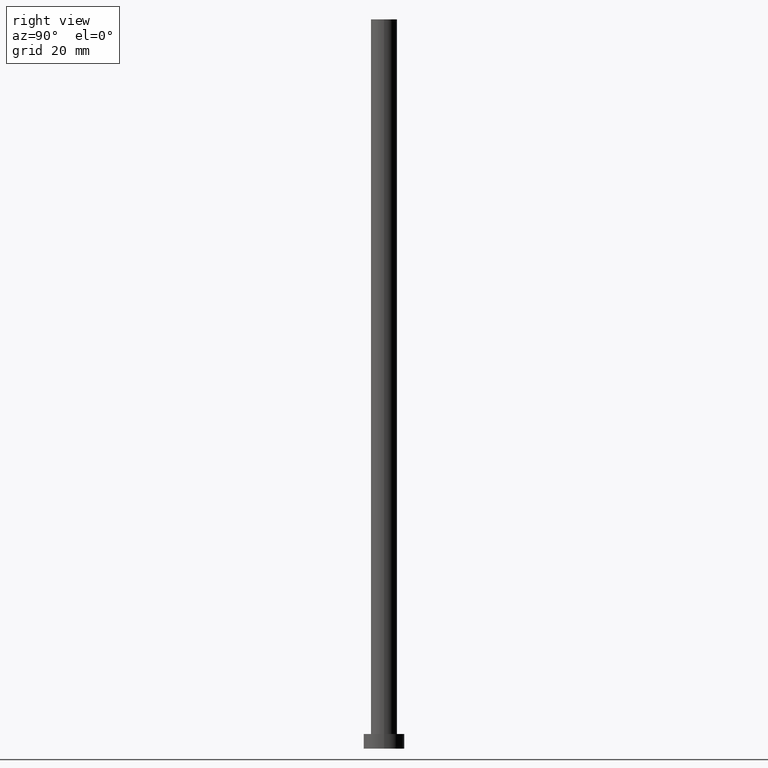
[diagram: clean part render]
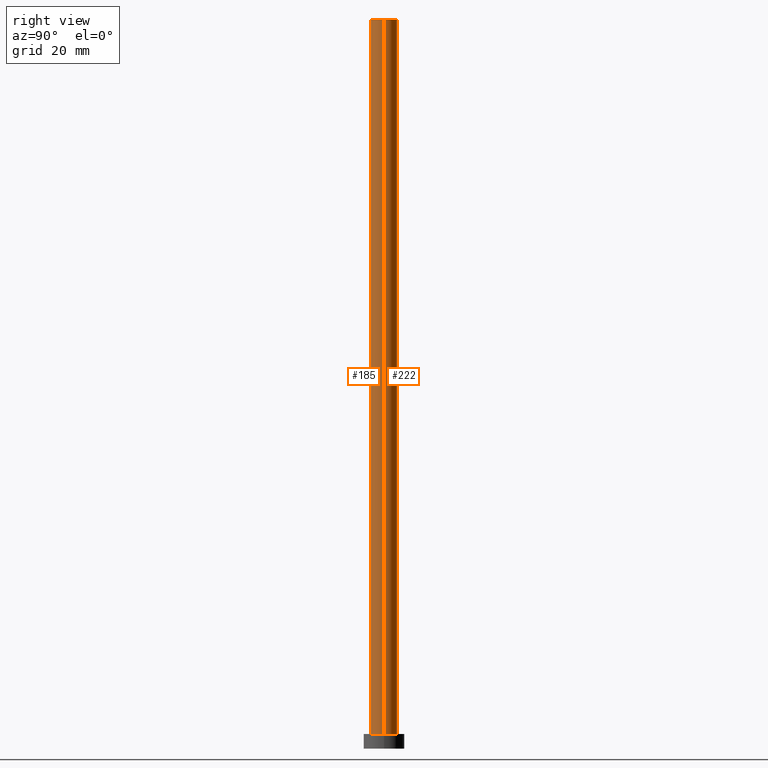
[diagram: same view with one multi-face feature highlighted, each face labeled with its STEP entity id]
A machine part, right view. The highlighted faces form ONE feature: a constant-radius fillet chain: 2 tangent blend faces with common blend radius 4.5 mm. The faces share edges in the B-rep.
Their STEP definitions:
[1] entity #222 (Cylinder):
#2 = AXIS2_PLACEMENT_3D ( 'NONE', #137, #24, #225 ) ;
#3 = DIRECTION ( 'NONE',  ( -1.000000000000000000, 0.000000000000000000, 0.000000000000000000 ) ) ;
#7 = EDGE_CURVE ( 'NONE', #127, #232, #157, .T. ) ;
#16 = LINE ( 'NONE', #201, #182 ) ;
#19 = DIRECTION ( 'NONE',  ( -0.000000000000000000, -0.000000000000000000, -1.000000000000000000 ) ) ;
#24 = DIRECTION ( 'NONE',  ( 0.000000000000000000, 0.000000000000000000, 1.000000000000000000 ) ) ;
#28 = CYLINDRICAL_SURFACE ( 'NONE', #45, 4.500000000000000888 ) ;
#31 = ORIENTED_EDGE ( 'NONE', *, *, #80, .T. ) ;
#38 = DIRECTION ( 'NONE',  ( 1.000000000000000000, 0.000000000000000000, 0.000000000000000000 ) ) ;
#39 = CARTESIAN_POINT ( 'NONE',  ( 4.500000000000000888, 5.510910596163089556E-16, 250.0000000000000000 ) ) ;
#42 = CARTESIAN_POINT ( 'NONE',  ( -4.500000000000000888, 0.000000000000000000, 5.000000000000000000 ) ) ;
#45 = AXIS2_PLACEMENT_3D ( 'NONE', #231, #50, #3 ) ;
#49 = CARTESIAN_POINT ( 'NONE',  ( 0.000000000000000000, 0.000000000000000000, 5.000000000000000000 ) ) ;
#50 = DIRECTION ( 'NONE',  ( -0.000000000000000000, -0.000000000000000000, -1.000000000000000000 ) ) ;
#61 = FACE_OUTER_BOUND ( 'NONE', #184, .T. ) ;
#66 = CARTESIAN_POINT ( 'NONE',  ( 4.500000000000000888, 5.510910596163089556E-16, 250.0000000000000000 ) ) ;
#69 = EDGE_CURVE ( 'NONE', #127, #104, #166, .T. ) ;
#80 = EDGE_CURVE ( 'NONE', #104, #123, #102, .T. ) ;
#91 = ORIENTED_EDGE ( 'NONE', *, *, #114, .F. ) ;
#102 = CIRCLE ( 'NONE', #117, 4.500000000000000888 ) ;
#104 = VERTEX_POINT ( 'NONE', #134 ) ;
#107 = CARTESIAN_POINT ( 'NONE',  ( -4.500000000000000888, 0.000000000000000000, 250.0000000000000000 ) ) ;
#114 = EDGE_CURVE ( 'NONE', #232, #123, #16, .T. ) ;
#117 = AXIS2_PLACEMENT_3D ( 'NONE', #49, #239, #38 ) ;
#123 = VERTEX_POINT ( 'NONE', #42 ) ;
#125 = ORIENTED_EDGE ( 'NONE', *, *, #7, .F. ) ;
#127 = VERTEX_POINT ( 'NONE', #39 ) ;
#134 = CARTESIAN_POINT ( 'NONE',  ( 4.500000000000000888, 5.510910596163089556E-16, 5.000000000000000000 ) ) ;
#137 = CARTESIAN_POINT ( 'NONE',  ( 0.000000000000000000, 0.000000000000000000, 250.0000000000000000 ) ) ;
#157 = CIRCLE ( 'NONE', #2, 4.500000000000000888 ) ;
#166 = LINE ( 'NONE', #66, #253 ) ;
#169 = ORIENTED_EDGE ( 'NONE', *, *, #69, .T. ) ;
#182 = VECTOR ( 'NONE', #19, 1000.000000000000000 ) ;
#184 = EDGE_LOOP ( 'NONE', ( #125, #169, #31, #91 ) ) ;
#201 = CARTESIAN_POINT ( 'NONE',  ( -4.500000000000000888, 0.000000000000000000, 250.0000000000000000 ) ) ;
#211 = DIRECTION ( 'NONE',  ( -0.000000000000000000, -0.000000000000000000, -1.000000000000000000 ) ) ;
#222 = ADVANCED_FACE ( 'NONE', ( #61 ), #28, .T. ) ;
#225 = DIRECTION ( 'NONE',  ( 1.000000000000000000, 0.000000000000000000, 0.000000000000000000 ) ) ;
#231 = CARTESIAN_POINT ( 'NONE',  ( 0.000000000000000000, 0.000000000000000000, 250.0000000000000000 ) ) ;
#232 = VERTEX_POINT ( 'NONE', #107 ) ;
#239 = DIRECTION ( 'NONE',  ( 0.000000000000000000, 0.000000000000000000, 1.000000000000000000 ) ) ;
#253 = VECTOR ( 'NONE', #211, 1000.000000000000000 ) ;
[2] entity #185 (Cylinder):
#11 = EDGE_LOOP ( 'NONE', ( #233, #213, #194, #241 ) ) ;
#16 = LINE ( 'NONE', #201, #182 ) ;
#19 = DIRECTION ( 'NONE',  ( -0.000000000000000000, -0.000000000000000000, -1.000000000000000000 ) ) ;
#22 = CIRCLE ( 'NONE', #171, 4.500000000000000888 ) ;
#39 = CARTESIAN_POINT ( 'NONE',  ( 4.500000000000000888, 5.510910596163089556E-16, 250.0000000000000000 ) ) ;
#41 = CARTESIAN_POINT ( 'NONE',  ( 0.000000000000000000, 0.000000000000000000, 250.0000000000000000 ) ) ;
#42 = CARTESIAN_POINT ( 'NONE',  ( -4.500000000000000888, 0.000000000000000000, 5.000000000000000000 ) ) ;
#66 = CARTESIAN_POINT ( 'NONE',  ( 4.500000000000000888, 5.510910596163089556E-16, 250.0000000000000000 ) ) ;
#69 = EDGE_CURVE ( 'NONE', #127, #104, #166, .T. ) ;
#78 = DIRECTION ( 'NONE',  ( 1.000000000000000000, 0.000000000000000000, 0.000000000000000000 ) ) ;
#101 = EDGE_CURVE ( 'NONE', #123, #104, #248, .T. ) ;
#104 = VERTEX_POINT ( 'NONE', #134 ) ;
#107 = CARTESIAN_POINT ( 'NONE',  ( -4.500000000000000888, 0.000000000000000000, 250.0000000000000000 ) ) ;
#114 = EDGE_CURVE ( 'NONE', #232, #123, #16, .T. ) ;
#115 = DIRECTION ( 'NONE',  ( -0.000000000000000000, -0.000000000000000000, -1.000000000000000000 ) ) ;
#123 = VERTEX_POINT ( 'NONE', #42 ) ;
#127 = VERTEX_POINT ( 'NONE', #39 ) ;
#134 = CARTESIAN_POINT ( 'NONE',  ( 4.500000000000000888, 5.510910596163089556E-16, 5.000000000000000000 ) ) ;
#135 = DIRECTION ( 'NONE',  ( 0.000000000000000000, 0.000000000000000000, 1.000000000000000000 ) ) ;
#139 = AXIS2_PLACEMENT_3D ( 'NONE', #41, #115, #199 ) ;
#152 = CARTESIAN_POINT ( 'NONE',  ( 0.000000000000000000, 0.000000000000000000, 5.000000000000000000 ) ) ;
#156 = FACE_OUTER_BOUND ( 'NONE', #11, .T. ) ;
#164 = EDGE_CURVE ( 'NONE', #232, #127, #22, .T. ) ;
#166 = LINE ( 'NONE', #66, #253 ) ;
#171 = AXIS2_PLACEMENT_3D ( 'NONE', #240, #135, #78 ) ;
#182 = VECTOR ( 'NONE', #19, 1000.000000000000000 ) ;
#185 = ADVANCED_FACE ( 'NONE', ( #156 ), #221, .T. ) ;
#189 = AXIS2_PLACEMENT_3D ( 'NONE', #152, #236, #237 ) ;
#194 = ORIENTED_EDGE ( 'NONE', *, *, #114, .T. ) ;
#199 = DIRECTION ( 'NONE',  ( -1.000000000000000000, 0.000000000000000000, 0.000000000000000000 ) ) ;
#201 = CARTESIAN_POINT ( 'NONE',  ( -4.500000000000000888, 0.000000000000000000, 250.0000000000000000 ) ) ;
#211 = DIRECTION ( 'NONE',  ( -0.000000000000000000, -0.000000000000000000, -1.000000000000000000 ) ) ;
#213 = ORIENTED_EDGE ( 'NONE', *, *, #164, .F. ) ;
#221 = CYLINDRICAL_SURFACE ( 'NONE', #139, 4.500000000000000888 ) ;
#232 = VERTEX_POINT ( 'NONE', #107 ) ;
#233 = ORIENTED_EDGE ( 'NONE', *, *, #69, .F. ) ;
#236 = DIRECTION ( 'NONE',  ( 0.000000000000000000, 0.000000000000000000, 1.000000000000000000 ) ) ;
#237 = DIRECTION ( 'NONE',  ( 1.000000000000000000, 0.000000000000000000, 0.000000000000000000 ) ) ;
#240 = CARTESIAN_POINT ( 'NONE',  ( 0.000000000000000000, 0.000000000000000000, 250.0000000000000000 ) ) ;
#241 = ORIENTED_EDGE ( 'NONE', *, *, #101, .T. ) ;
#248 = CIRCLE ( 'NONE', #189, 4.500000000000000888 ) ;
#253 = VECTOR ( 'NONE', #211, 1000.000000000000000 ) ;